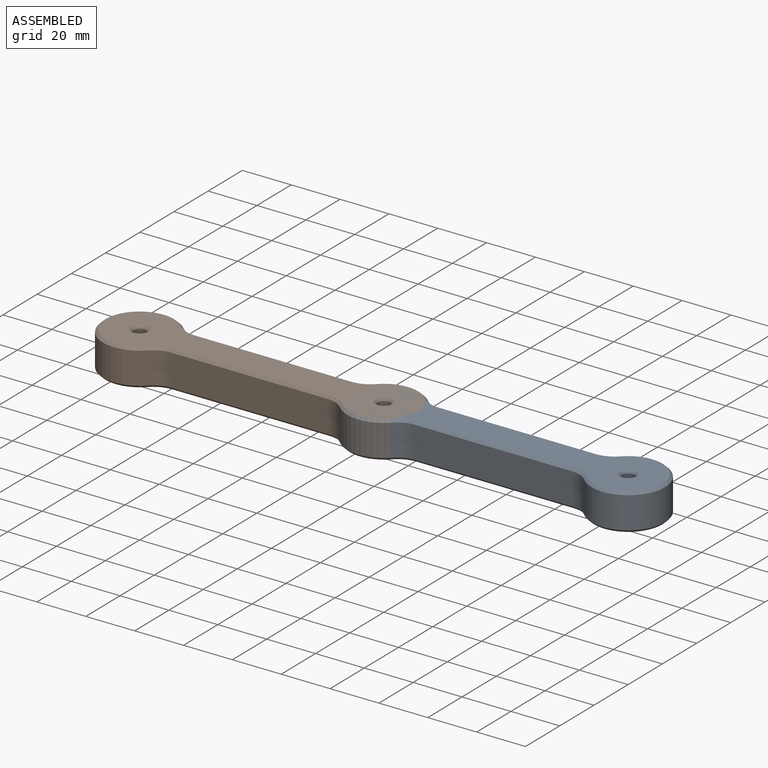
[diagram: assembled view]
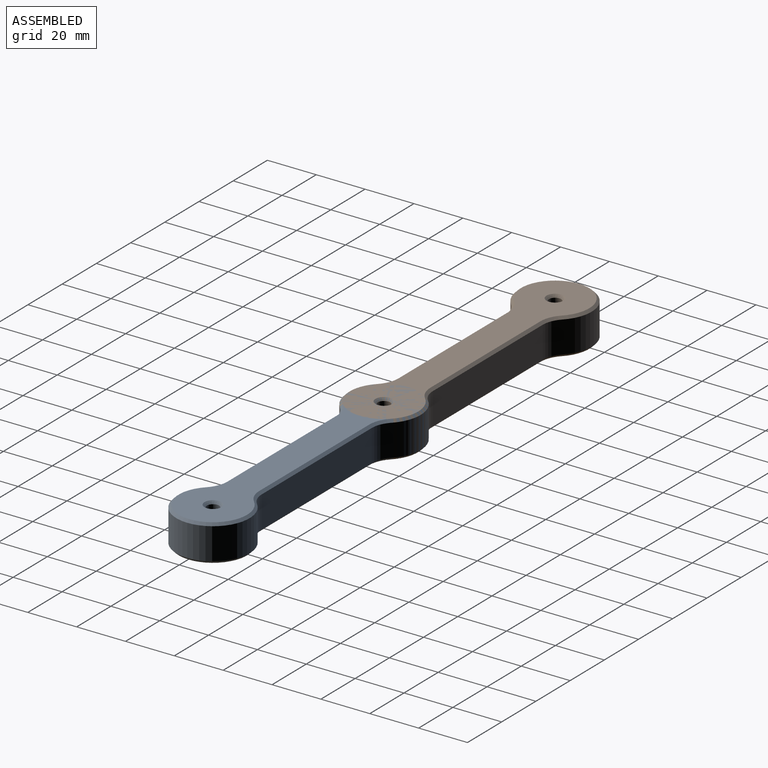
[diagram: assembled view, second angle]
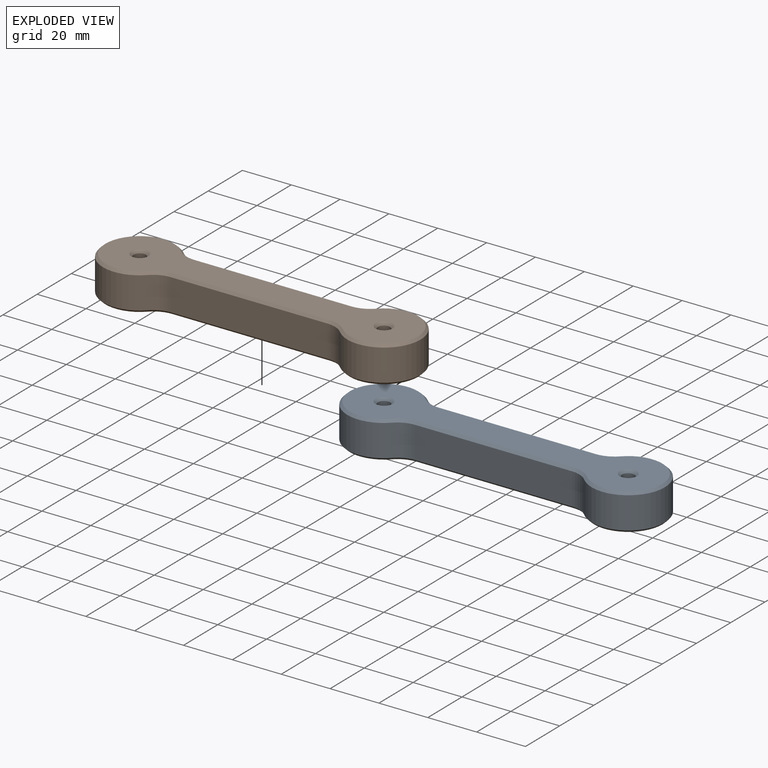
[diagram: exploded view]
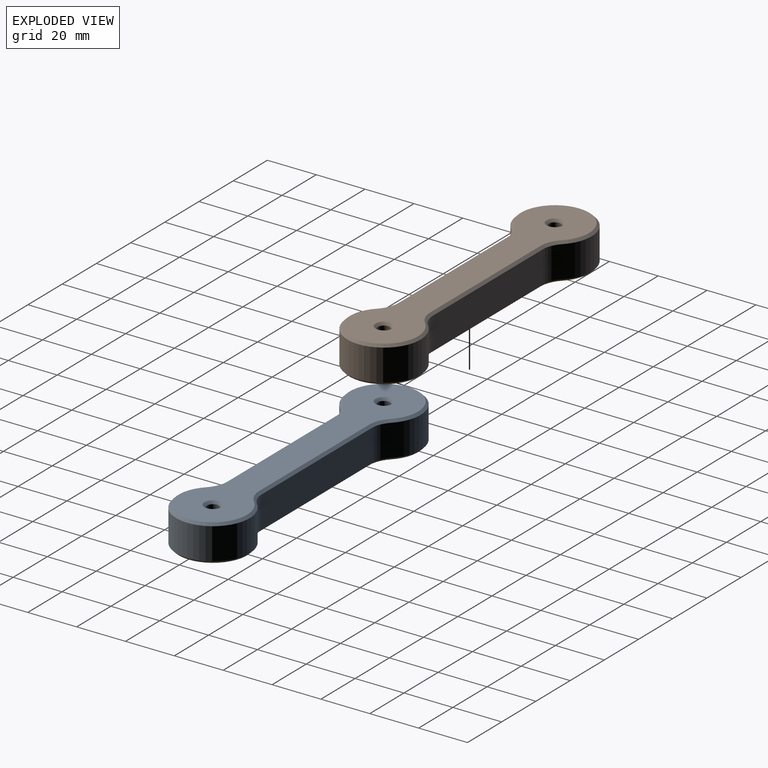
[diagram: exploded view, second angle]
ASSEMBLY  parts=2 mates=2
PART A: 32 faces, bbox 130x30x15 mm
  f0: cylinder r=10mm len=13mm, axis (0,0,-1), area 103.4mm2, adj f1,f7,f16,f28
  f1: cylinder r=15mm len=30mm, axis (0,0,-1), area 922.8mm2, adj f0,f2,f18,f26
  f2: cylinder r=10mm len=13mm, axis (0,0,-1), area 103.4mm2, adj f1,f3,f20,f24
  f3: plane 64.29x13mm, normal (0,1,0), area 835.8mm2, adj f2,f4,f21,f22
  f4: cylinder r=10mm len=13mm, axis (0,0,-1), area 103.4mm2, adj f3,f5,f19,f23
  f5: cylinder r=15mm len=30mm, axis (0,0,-1), area 922.8mm2, adj f4,f6,f17,f25
  f6: cylinder r=10mm len=13mm, axis (0,0,-1), area 103.4mm2, adj f5,f7,f15,f27
  f7: plane 64.29x13mm, normal (0,-1,0), area 835.8mm2, adj f0,f6,f14,f29
  f8: plane 128x28mm, normal (0,0,1), area 2118.8mm2, adj f14,f15,f16,f17,f18,f19,f20,f21
  f9: plane 128x28mm, normal (0,0,-1), area 1912mm2, adj f11,f13,f22,f23,f24,f25,f26,f27
  f10: cylinder r=2.5mm len=9.78mm, axis (0,0,-1), area 153.6mm2, adj f11,f31
  f11: cone r=2.5mm half-angle=45deg, axis (0,0,-1), area 172.9mm2, adj f9,f10
  f12: cylinder r=2.5mm len=9.78mm, axis (0,0,-1), area 153.6mm2, adj f13,f30
  f13: cone r=2.5mm half-angle=45deg, axis (0,0,-1), area 172.9mm2, adj f9,f12
  f14: plane 64.29x1mm, normal (0,-0.71,0.71), area 90.9mm2, adj f7,f8,f15,f16
  f15: cone r=10mm half-angle=45deg, axis (0,0,1), area 11.8mm2, adj f6,f8,f14,f17
  f16: cone r=10mm half-angle=45deg, axis (0,0,1), area 11.8mm2, adj f0,f8,f14,f18
  f17: cone r=14mm half-angle=45deg, axis (0,0,-1), area 97mm2, adj f5,f8,f15,f19
  f18: cone r=14mm half-angle=45deg, axis (0,0,-1), area 97mm2, adj f1,f8,f16,f20
  f19: cone r=10mm half-angle=45deg, axis (0,0,1), area 11.8mm2, adj f4,f8,f17,f21
  f20: cone r=10mm half-angle=45deg, axis (0,0,1), area 11.8mm2, adj f2,f8,f18,f21
  f21: plane 64.29x1mm, normal (0,0.71,0.71), area 90.9mm2, adj f3,f8,f19,f20
  f22: plane 64.29x1mm, normal (0,0.71,-0.71), area 90.9mm2, adj f3,f9,f23,f24
  f23: cone r=11mm half-angle=45deg, axis (0,0,-1), area 11.8mm2, adj f4,f9,f22,f25
  f24: cone r=11mm half-angle=45deg, axis (0,0,-1), area 11.8mm2, adj f2,f9,f22,f26
  f25: cone r=15mm half-angle=45deg, axis (0,0,1), area 97mm2, adj f5,f9,f23,f27
  f26: cone r=15mm half-angle=45deg, axis (0,0,1), area 97mm2, adj f1,f9,f24,f28
  f27: cone r=11mm half-angle=45deg, axis (0,0,-1), area 11.8mm2, adj f6,f9,f25,f29
  f28: cone r=11mm half-angle=45deg, axis (0,0,-1), area 11.8mm2, adj f0,f9,f26,f29
  f29: plane 64.29x1mm, normal (0,-0.71,-0.71), area 90.9mm2, adj f7,f9,f27,f28
  f30: cone r=3.5mm half-angle=45deg, axis (0,0,1), area 26.7mm2, adj f8,f12
  f31: cone r=3.5mm half-angle=45deg, axis (0,0,1), area 26.7mm2, adj f8,f10
PART B: same geometry as A
PLACE A rot(axis=(0.69,-0.7,-0.17),0deg) t=(96.83,-13.42,-6.16)mm
PLACE B rot(axis=(0,0,1),180deg) t=(36.83,22.58,-6.16)mm
MATE revolute B.f5 <-> A.f5  axis (0,0,-1) through (66.83,4.58,1.34)mm
MATE planar B.f8 <-> A.f8  axis (0,0,1) through (16.83,-1.92,8.84)mm
